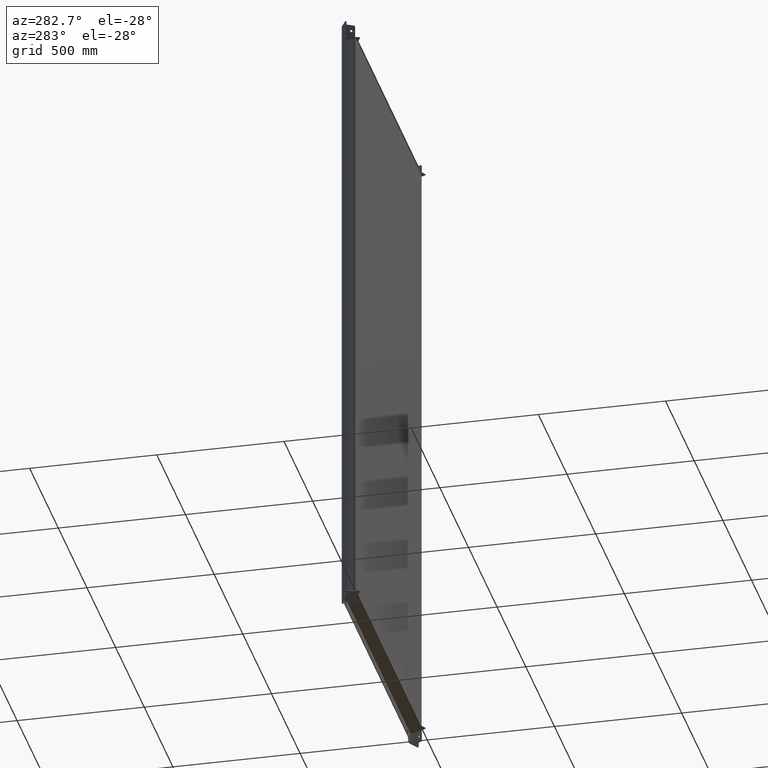
[diagram: clean part render]
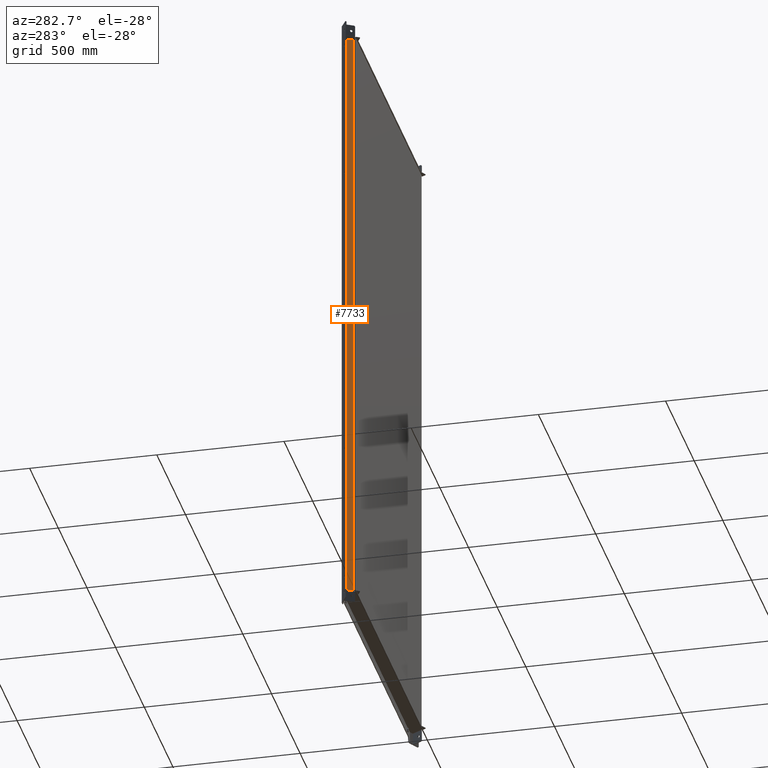
[diagram: same view with one face highlighted and labeled with its STEP entity id]
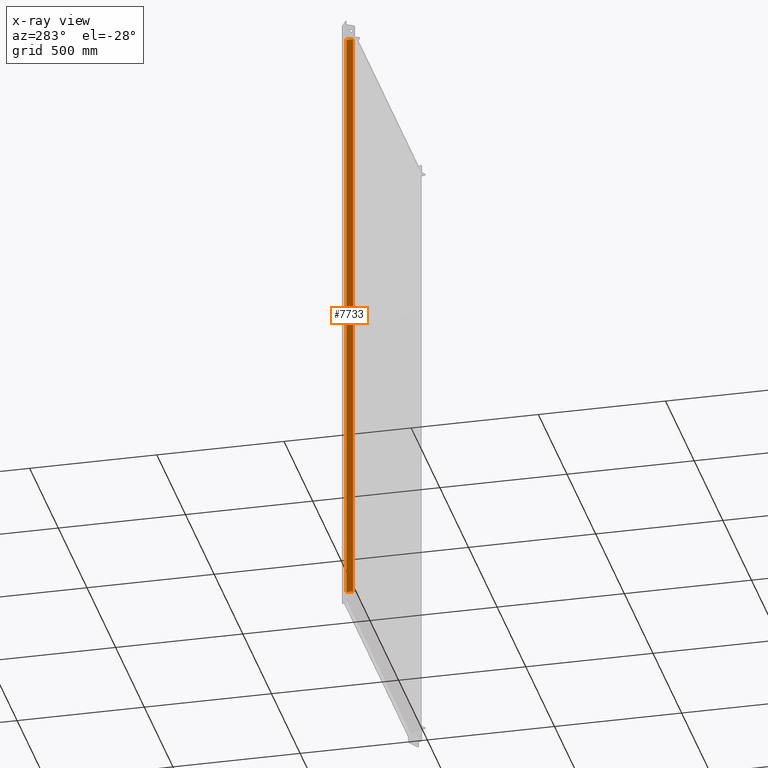
[diagram: x-ray of the same camera — body ghosted, the highlighted face saturated]
A machine part, auxiliary view. The second image highlights one B-rep face of the part: STEP entity #7733.
The next image is the same camera in x-ray: the body ghosted, the highlighted face saturated — about 0% of this face is hidden behind the body in this view.
In plain terms, the highlighted planar face has unit normal (1, 0, 0).
Its self-contained STEP definition (entity closure, byte-faithful):
#518 = ORIENTED_EDGE ( 'NONE', *, *, #8140, .T. ) ;
#1132 = VERTEX_POINT ( 'NONE', #12880 ) ;
#1338 = VECTOR ( 'NONE', #6596, 1000.000000000000000 ) ;
#1467 = CARTESIAN_POINT ( 'NONE',  ( 1199.999999999999773, -12.99999999999990052, -573.0000000000000000 ) ) ;
#1965 = FACE_OUTER_BOUND ( 'NONE', #5673, .T. ) ;
#2166 = VECTOR ( 'NONE', #9719, 1000.000000000000000 ) ;
#2553 = ORIENTED_EDGE ( 'NONE', *, *, #11453, .F. ) ;
#2605 = CARTESIAN_POINT ( 'NONE',  ( -1200.000000000000227, 12.99999999999990052, -573.0000000000000000 ) ) ;
#2655 = DIRECTION ( 'NONE',  ( -0.000000000000000000, -1.000000000000000000, -0.000000000000000000 ) ) ;
#3051 = VERTEX_POINT ( 'NONE', #9239 ) ;
#3081 = ORIENTED_EDGE ( 'NONE', *, *, #5868, .T. ) ;
#3124 = LINE ( 'NONE', #10758, #12836 ) ;
#3361 = LINE ( 'NONE', #6499, #2166 ) ;
#4482 = ORIENTED_EDGE ( 'NONE', *, *, #8348, .F. ) ;
#5673 = EDGE_LOOP ( 'NONE', ( #2553, #3081, #518, #4482 ) ) ;
#5868 = EDGE_CURVE ( 'NONE', #1132, #8099, #3124, .T. ) ;
#6499 = CARTESIAN_POINT ( 'NONE',  ( 4825.050751492372910, -12.99999999999999822, -573.0000000000000000 ) ) ;
#6532 = DIRECTION ( 'NONE',  ( 1.000000000000000000, 0.000000000000000000, -0.000000000000000000 ) ) ;
#6596 = DIRECTION ( 'NONE',  ( -1.000000000000000000, 0.000000000000000000, 0.000000000000000000 ) ) ;
#7733 = ADVANCED_FACE ( 'NONE', ( #1965 ), #8402, .F. ) ;
#8099 = VERTEX_POINT ( 'NONE', #1467 ) ;
#8140 = EDGE_CURVE ( 'NONE', #8099, #3051, #3361, .T. ) ;
#8348 = EDGE_CURVE ( 'NONE', #11307, #3051, #9292, .T. ) ;
#8402 = PLANE ( 'NONE',  #12674 ) ;
#8545 = VECTOR ( 'NONE', #2655, 1000.000000000000000 ) ;
#9076 = CARTESIAN_POINT ( 'NONE',  ( -1200.000000000000227, 2684.120642039801169, -573.0000000000000000 ) ) ;
#9239 = CARTESIAN_POINT ( 'NONE',  ( -1200.000000000000227, -12.99999999999990052, -573.0000000000000000 ) ) ;
#9292 = LINE ( 'NONE', #9076, #8545 ) ;
#9719 = DIRECTION ( 'NONE',  ( -1.000000000000000000, 0.000000000000000000, 0.000000000000000000 ) ) ;
#10095 = LINE ( 'NONE', #12178, #1338 ) ;
#10758 = CARTESIAN_POINT ( 'NONE',  ( 1199.999999999999773, 2684.120642039801169, -573.0000000000000000 ) ) ;
#11307 = VERTEX_POINT ( 'NONE', #2605 ) ;
#11453 = EDGE_CURVE ( 'NONE', #1132, #11307, #10095, .T. ) ;
#11897 = DIRECTION ( 'NONE',  ( 0.000000000000000000, 0.000000000000000000, 1.000000000000000000 ) ) ;
#11914 = DIRECTION ( 'NONE',  ( -0.000000000000000000, -1.000000000000000000, -0.000000000000000000 ) ) ;
#11974 = CARTESIAN_POINT ( 'NONE',  ( -1200.000000000000227, 2684.120642039801169, -573.0000000000000000 ) ) ;
#12178 = CARTESIAN_POINT ( 'NONE',  ( 4825.050751492372910, 12.99999999999999822, -573.0000000000000000 ) ) ;
#12674 = AXIS2_PLACEMENT_3D ( 'NONE', #11974, #11897, #6532 ) ;
#12836 = VECTOR ( 'NONE', #11914, 1000.000000000000000 ) ;
#12880 = CARTESIAN_POINT ( 'NONE',  ( 1199.999999999999773, 12.99999999999990052, -573.0000000000000000 ) ) ;